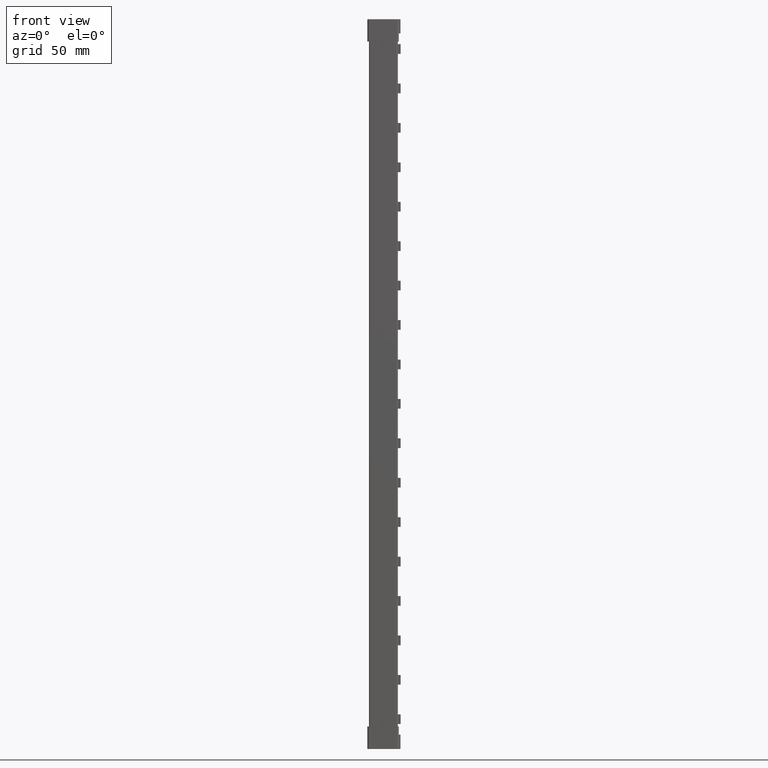
[diagram: clean part render]
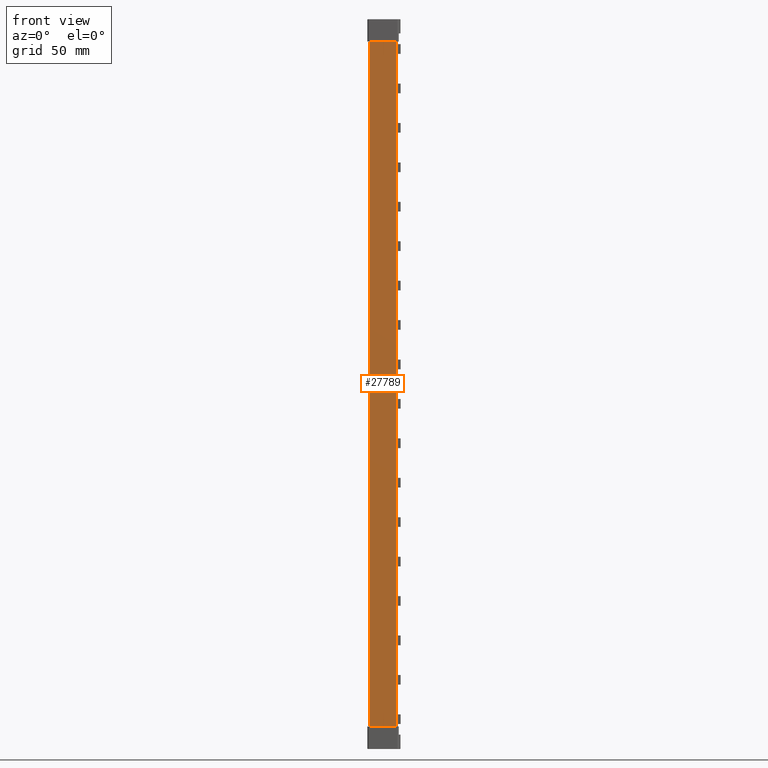
[diagram: same view with one face highlighted and labeled with its STEP entity id]
A machine part, front view. The second image highlights one B-rep face of the part: STEP entity #27789.
In plain terms, the highlighted planar face has unit normal (-0, 1, 0).
Its self-contained STEP definition (entity closure, byte-faithful):
#335 = VECTOR ( 'NONE', #23582, 1000.000000000000100 ) ;
#3725 = EDGE_CURVE ( 'NONE', #17556, #17535, #23595, .T. ) ;
#3800 = EDGE_CURVE ( 'NONE', #17540, #17584, #23843, .T. ) ;
#3803 = EDGE_CURVE ( 'NONE', #17584, #17556, #23885, .T. ) ;
#3838 = EDGE_CURVE ( 'NONE', #17535, #17540, #23889, .T. ) ;
#6778 = AXIS2_PLACEMENT_3D ( 'NONE', #19704, #19722, #19696 ) ;
#9370 = CARTESIAN_POINT ( 'NONE',  ( 1.420738248873311600E-009, 5.593511740758228600E-014, -95.90000000000003400 ) ) ;
#9390 = CARTESIAN_POINT ( 'NONE',  ( 8.945210660378453700E-017, -1.420681425510587100E-009, 209.9000000000000100 ) ) ;
#9391 = CARTESIAN_POINT ( 'NONE',  ( 11.80192812978782300, 1.341396425247165100E-007, -95.90000000000003400 ) ) ;
#9476 = CARTESIAN_POINT ( 'NONE',  ( 11.80192812978782500, 1.341396422457423400E-007, 209.9000000000000100 ) ) ;
#12035 = ORIENTED_EDGE ( 'NONE', *, *, #3838, .F. ) ;
#12036 = ORIENTED_EDGE ( 'NONE', *, *, #3725, .F. ) ;
#12046 = ORIENTED_EDGE ( 'NONE', *, *, #3800, .F. ) ;
#12061 = ORIENTED_EDGE ( 'NONE', *, *, #3803, .F. ) ;
#17418 = EDGE_LOOP ( 'NONE', ( #12036, #12061, #12046, #12035 ) ) ;
#17535 = VERTEX_POINT ( 'NONE', #9370 ) ;
#17540 = VERTEX_POINT ( 'NONE', #9390 ) ;
#17556 = VERTEX_POINT ( 'NONE', #9391 ) ;
#17584 = VERTEX_POINT ( 'NONE', #9476 ) ;
#19641 = PLANE ( 'NONE',  #6778 ) ;
#19674 = FACE_OUTER_BOUND ( 'NONE', #17418, .T. ) ;
#19696 = DIRECTION ( 'NONE',  ( -0.9999999999999998900, -1.136590436583420100E-008, 0.0000000000000000000 ) ) ;
#19704 = CARTESIAN_POINT ( 'NONE',  ( 0.0000000000000000000, 5.551115123125782700E-014, 219.0000000000000000 ) ) ;
#19722 = DIRECTION ( 'NONE',  ( -1.136590436583420300E-008, 1.000000000000000000, 0.0000000000000000000 ) ) ;
#22870 = DIRECTION ( 'NONE',  ( 0.0000000000000000000, 0.0000000000000000000, 1.000000000000000000 ) ) ;
#23579 = CARTESIAN_POINT ( 'NONE',  ( 0.0000000000000000000, 5.551115123125782700E-014, -95.90000000000006300 ) ) ;
#23582 = DIRECTION ( 'NONE',  ( -0.9999999999999998900, -1.136590436583420100E-008, 0.0000000000000000000 ) ) ;
#23595 = LINE ( 'NONE', #23579, #335 ) ;
#23843 = LINE ( 'NONE', #23847, #28818 ) ;
#23847 = CARTESIAN_POINT ( 'NONE',  ( 0.0000000000000000000, 5.551115123125782700E-014, 209.9000000000000100 ) ) ;
#23854 = CARTESIAN_POINT ( 'NONE',  ( 11.80192812978782700, 1.341396419667681800E-007, 219.0000000000000000 ) ) ;
#23885 = LINE ( 'NONE', #23854, #28819 ) ;
#23889 = LINE ( 'NONE', #23892, #28810 ) ;
#23892 = CARTESIAN_POINT ( 'NONE',  ( 6.569118929450495000E-017, 5.551115123200447400E-014, 219.0000000000000000 ) ) ;
#23916 = DIRECTION ( 'NONE',  ( 0.9999999999999998900, 1.136590436583420100E-008, -0.0000000000000000000 ) ) ;
#23931 = DIRECTION ( 'NONE',  ( -0.0000000000000000000, -0.0000000000000000000, -1.000000000000000000 ) ) ;
#27789 = ADVANCED_FACE ( 'NONE', ( #19674 ), #19641, .F. ) ;
#28810 = VECTOR ( 'NONE', #22870, 1000.000000000000000 ) ;
#28818 = VECTOR ( 'NONE', #23916, 1000.000000000000100 ) ;
#28819 = VECTOR ( 'NONE', #23931, 1000.000000000000000 ) ;